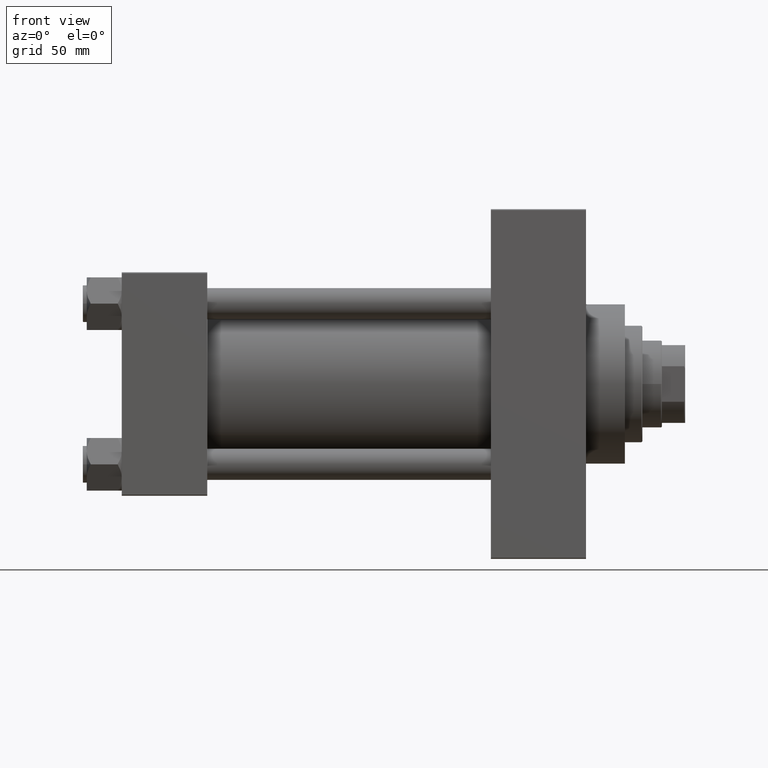
[diagram: clean part render]
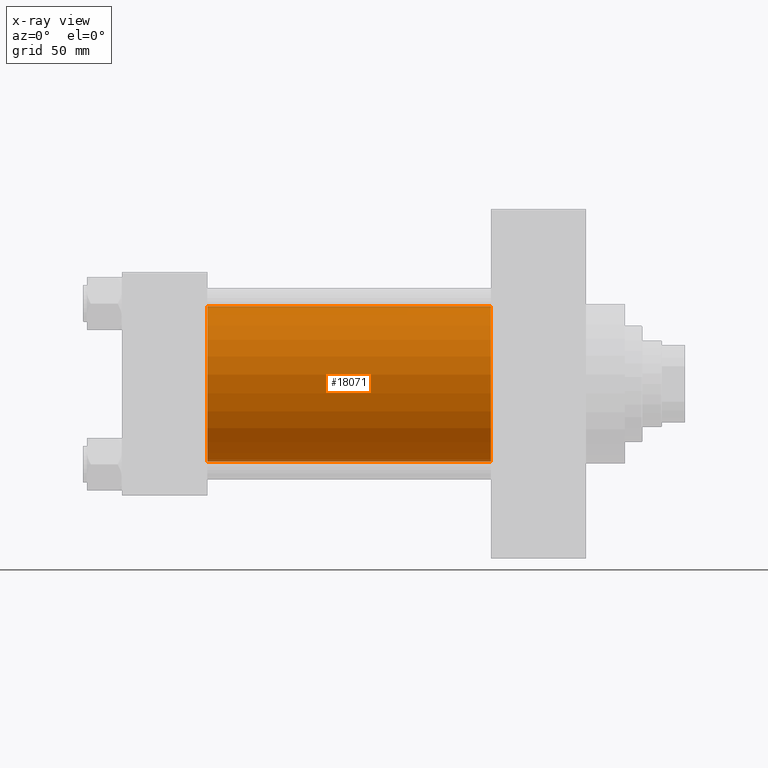
[diagram: x-ray — body ghosted, one internal face saturated and labeled with its STEP entity id]
A machine part, front view, then the same camera in x-ray: the body is ghosted and one INTERNAL B-rep face — a face not visible from any outside direction — is saturated and labeled: STEP entity #18071.
In plain terms, the highlighted cylindrical surface (partial cylindrical patch) has radius 40 mm, axis along (-1, -0, -0).
Its self-contained STEP definition (entity closure, byte-faithful):
#107 = FACE_OUTER_BOUND ( 'NONE', #34376, .T. ) ;
#2987 = ORIENTED_EDGE ( 'NONE', *, *, #30888, .F. ) ;
#4159 = DIRECTION ( 'NONE',  ( -1.000000000000000000, -0.000000000000000000, -0.000000000000000000 ) ) ;
#4217 = CYLINDRICAL_SURFACE ( 'NONE', #20290, 40.00000000000000000 ) ;
#4458 = CARTESIAN_POINT ( 'NONE',  ( 190.0000000000000000, -2.602085213965210642E-15, 0.000000000000000000 ) ) ;
#5203 = CARTESIAN_POINT ( 'NONE',  ( 190.0000000000000000, -2.602085213965210642E-15, 0.000000000000000000 ) ) ;
#7088 = CARTESIAN_POINT ( 'NONE',  ( 190.0000000000000000, 2.296501982624201990E-15, -40.00000000000000000 ) ) ;
#10446 = EDGE_CURVE ( 'NONE', #30100, #41308, #39544, .T. ) ;
#14037 = VERTEX_POINT ( 'NONE', #40429 ) ;
#14917 = CARTESIAN_POINT ( 'NONE',  ( 190.0000000000000000, -2.602085213965210642E-15, 40.00000000000000000 ) ) ;
#15628 = CARTESIAN_POINT ( 'NONE',  ( 190.0000000000000000, 2.296501982624201990E-15, -40.00000000000000000 ) ) ;
#17734 = DIRECTION ( 'NONE',  ( 0.000000000000000000, 0.000000000000000000, -1.000000000000000000 ) ) ;
#18071 = ADVANCED_FACE ( 'NONE', ( #107 ), #4217, .F. ) ;
#19609 = CARTESIAN_POINT ( 'NONE',  ( 44.00000000000000000, 2.296501982624201990E-15, -40.00000000000000000 ) ) ;
#20290 = AXIS2_PLACEMENT_3D ( 'NONE', #4458, #36689, #25997 ) ;
#25931 = DIRECTION ( 'NONE',  ( 1.000000000000000000, 0.000000000000000000, 0.000000000000000000 ) ) ;
#25997 = DIRECTION ( 'NONE',  ( 0.000000000000000000, 0.000000000000000000, 1.000000000000000000 ) ) ;
#26508 = ORIENTED_EDGE ( 'NONE', *, *, #10446, .T. ) ;
#27468 = DIRECTION ( 'NONE',  ( 0.000000000000000000, 0.000000000000000000, -1.000000000000000000 ) ) ;
#28664 = ORIENTED_EDGE ( 'NONE', *, *, #35180, .F. ) ;
#30100 = VERTEX_POINT ( 'NONE', #15628 ) ;
#30814 = VECTOR ( 'NONE', #4159, 1000.000000000000000 ) ;
#30888 = EDGE_CURVE ( 'NONE', #39335, #14037, #40588, .T. ) ;
#31912 = CARTESIAN_POINT ( 'NONE',  ( 190.0000000000000000, -2.602085213965210642E-15, 40.00000000000000000 ) ) ;
#32496 = VECTOR ( 'NONE', #33307, 1000.000000000000000 ) ;
#32664 = AXIS2_PLACEMENT_3D ( 'NONE', #40244, #25931, #17734 ) ;
#33307 = DIRECTION ( 'NONE',  ( -1.000000000000000000, -0.000000000000000000, -0.000000000000000000 ) ) ;
#33729 = ORIENTED_EDGE ( 'NONE', *, *, #45070, .T. ) ;
#34376 = EDGE_LOOP ( 'NONE', ( #33729, #26508, #28664, #2987 ) ) ;
#34752 = DIRECTION ( 'NONE',  ( 1.000000000000000000, 0.000000000000000000, 0.000000000000000000 ) ) ;
#35180 = EDGE_CURVE ( 'NONE', #14037, #41308, #40369, .T. ) ;
#35186 = AXIS2_PLACEMENT_3D ( 'NONE', #5203, #34752, #27468 ) ;
#36689 = DIRECTION ( 'NONE',  ( -1.000000000000000000, -0.000000000000000000, -0.000000000000000000 ) ) ;
#39335 = VERTEX_POINT ( 'NONE', #31912 ) ;
#39544 = LINE ( 'NONE', #7088, #30814 ) ;
#40244 = CARTESIAN_POINT ( 'NONE',  ( 44.00000000000000000, -2.602085213965210642E-15, 0.000000000000000000 ) ) ;
#40369 = CIRCLE ( 'NONE', #32664, 40.00000000000000000 ) ;
#40429 = CARTESIAN_POINT ( 'NONE',  ( 44.00000000000000000, -2.602085213965210642E-15, 40.00000000000000000 ) ) ;
#40582 = CIRCLE ( 'NONE', #35186, 40.00000000000000000 ) ;
#40588 = LINE ( 'NONE', #14917, #32496 ) ;
#41308 = VERTEX_POINT ( 'NONE', #19609 ) ;
#45070 = EDGE_CURVE ( 'NONE', #39335, #30100, #40582, .T. ) ;